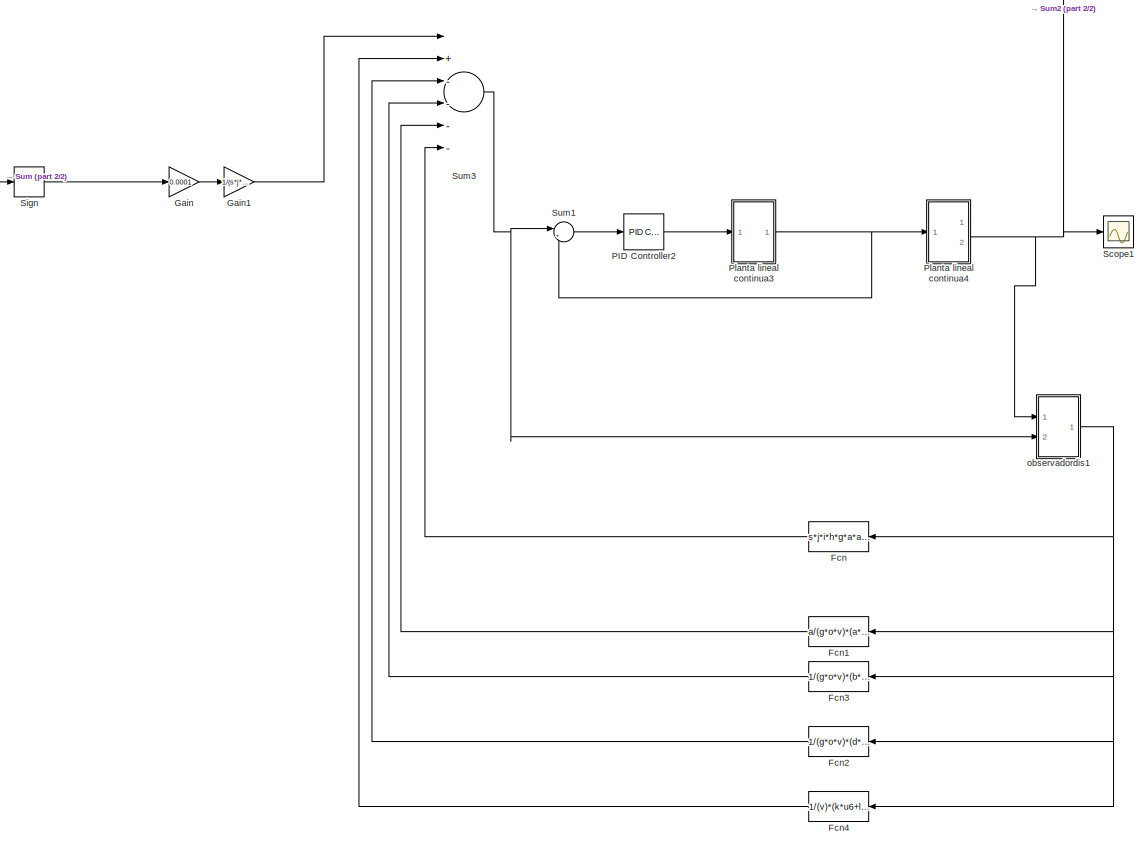
[diagram: root canvas - part 1/2, right side, full height]
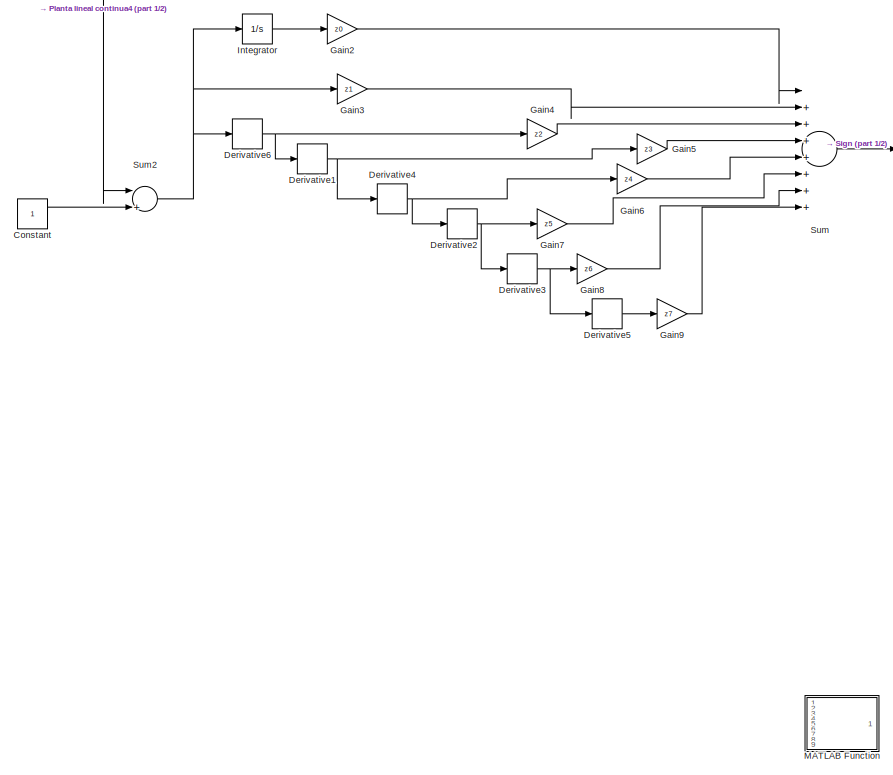
[diagram: root canvas - part 2/2, left side, full height]
MODEL slx_61d25e0f72ef
KIND model
CONFIG AbsTol = auto
CONFIG EnableMultiTasking = off
CONFIG FixedStep = auto
CONFIG MaxStep = auto
CONFIG MinStep = auto
CONFIG RelTol = 1e-3
CONFIG SampleTimeConstraint = Unconstrained
CONFIG Solver = VariableStepAuto
CONFIG SolverName = VariableStepAuto
CONFIG StartTime = 0.0
CONFIG StopTime = 10.0
BLOCK [Constant] Constant
BLOCK [Derivative] Derivative1
BLOCK [Derivative] Derivative2
BLOCK [Derivative] Derivative3
BLOCK [Derivative] Derivative4
BLOCK [Derivative] Derivative5
BLOCK [Derivative] Derivative6
BLOCK [Fcn] Fcn
  Expr = s*j*i*h*g*a*a*(a*u1+b*u2+c*u3+d*u4+e*u5+g*u7)+s*j*i*h*g*a*(b*g*u1+c*h*u2+d*i*u3+e*j*u4+g*o*u6)+s*j*i*h*g*a*(d*h*g*u1+d*h*u2+d*i*u3)+s*j*i*h*g*a*g*o(k*u6+l*u7+m*u8+n*u9)+s*j*i*h*g*a*g*o*v*u
BLOCK [Fcn] Fcn1
  Expr = a/(g*o*v)*(a*u1+b*u2+c*u3+d*u4+e*u5+g*u6)
BLOCK [Fcn] Fcn2
  Expr = 1/(g*o*v)*(d*h*g*u1+c*h*u2+d*i*u3)
BLOCK [Fcn] Fcn3
  Expr = 1/(g*o*v)*(b*g*u1+c*h*u2+d*i*u3+e*j*u4+g*o*u6)
BLOCK [Fcn] Fcn4
  Expr = 1/(v)*(k*u6+l*u7+m*u8+n*u9)
BLOCK [Gain] Gain
  Gain = 0.0001
  OutDataTypeStr = Inherit: Inherit via internal rule
  ParamDataTypeStr = Inherit: Inherit via internal rule
  SaturateOnIntegerOverflow = off
BLOCK [Gain] Gain1
  Gain = 1/(s*j*i*h*g*a*g*o*v)
  OutDataTypeStr = Inherit: Inherit via internal rule
  ParamDataTypeStr = Inherit: Inherit via internal rule
  SaturateOnIntegerOverflow = off
BLOCK [Gain] Gain2
  Gain = z0
  OutDataTypeStr = Inherit: Inherit via internal rule
  ParamDataTypeStr = Inherit: Inherit via internal rule
  SaturateOnIntegerOverflow = off
BLOCK [Gain] Gain3
  Gain = z1
  OutDataTypeStr = Inherit: Inherit via internal rule
  ParamDataTypeStr = Inherit: Inherit via internal rule
  SaturateOnIntegerOverflow = off
BLOCK [Gain] Gain4
  Gain = z2
  OutDataTypeStr = Inherit: Inherit via internal rule
  ParamDataTypeStr = Inherit: Inherit via internal rule
  SaturateOnIntegerOverflow = off
BLOCK [Gain] Gain5
  Gain = z3
  OutDataTypeStr = Inherit: Inherit via internal rule
  ParamDataTypeStr = Inherit: Inherit via internal rule
  SaturateOnIntegerOverflow = off
BLOCK [Gain] Gain6
  Gain = z4
  OutDataTypeStr = Inherit: Inherit via internal rule
  ParamDataTypeStr = Inherit: Inherit via internal rule
  SaturateOnIntegerOverflow = off
BLOCK [Gain] Gain7
  Gain = z5
  OutDataTypeStr = Inherit: Inherit via internal rule
  ParamDataTypeStr = Inherit: Inherit via internal rule
  SaturateOnIntegerOverflow = off
BLOCK [Gain] Gain8
  Gain = z6
  OutDataTypeStr = Inherit: Inherit via internal rule
  ParamDataTypeStr = Inherit: Inherit via internal rule
  SaturateOnIntegerOverflow = off
BLOCK [Gain] Gain9
  Gain = z7
  OutDataTypeStr = Inherit: Inherit via internal rule
  ParamDataTypeStr = Inherit: Inherit via internal rule
  SaturateOnIntegerOverflow = off
BLOCK [Integrator] Integrator
  Ports = [1, 1]
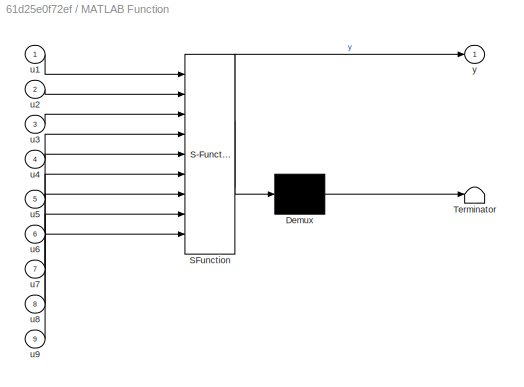
BLOCK [SubSystem] MATLAB Function
  ErrorFcn = Stateflow.Translate.translate
  PermitHierarchicalResolution = ExplicitOnly
  Ports = [9, 1]
  RequestExecContextInheritance = off
  SFBlockType = MATLAB Function
  TreatAsAtomicUnit = on
BLOCK [Demux] MATLAB Function/ Demux 
  Outputs = 1
  Ports = [1, 1]
BLOCK [S-Function] MATLAB Function/ SFunction 
  EnableBusSupport = off
  FunctionName = sf_sfun
  PortCounts = [9 2]
  Ports = [9, 2]
  SFcnIsStateOwnerBlock = off
  SFunctionDeploymentMode = off
  Tag = Stateflow S-Function funcion_1 2
BLOCK [Terminator] MATLAB Function/ Terminator 
BLOCK [Inport] MATLAB Function/u1
  IconDisplay = Port number
BLOCK [Inport] MATLAB Function/u2
  IconDisplay = Port number
  Port = 2
BLOCK [Inport] MATLAB Function/u3
  IconDisplay = Port number
  Port = 3
BLOCK [Inport] MATLAB Function/u4
  IconDisplay = Port number
  Port = 4
BLOCK [Inport] MATLAB Function/u5
  IconDisplay = Port number
  Port = 5
BLOCK [Inport] MATLAB Function/u6
  IconDisplay = Port number
  Port = 6
BLOCK [Inport] MATLAB Function/u7
  IconDisplay = Port number
  Port = 7
BLOCK [Inport] MATLAB Function/u8
  IconDisplay = Port number
  Port = 8
BLOCK [Inport] MATLAB Function/u9
  IconDisplay = Port number
  Port = 9
BLOCK [Outport] MATLAB Function/y
  IconDisplay = Port number
BLOCK [Reference] PID Controller2  REF=simulink/Continuous/PID Controller
  Ports = [1, 1]
  SourceBlock = simulink/Continuous/PID Controller
  SourceProductBaseCode = SL
  SourceProductName = Simulink
  SourceType = PID 1dof
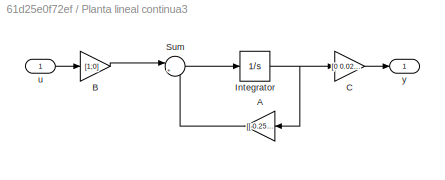
BLOCK [SubSystem] Planta lineal continua3
  Ports = [1, 1]
  RequestExecContextInheritance = off
BLOCK [Gain] Planta lineal continua3/A
  Gain = [[-0.25,-0.025];[1 0]]
  Multiplication = Matrix(K*u) (u vector)
  OutDataTypeStr = Inherit: Inherit via internal rule
  ParamDataTypeStr = Inherit: Inherit via internal rule
  SaturateOnIntegerOverflow = off
BLOCK [Gain] Planta lineal continua3/B
  Gain = [1;0]
  Multiplication = Matrix(K*u) (u vector)
  OutDataTypeStr = Inherit: Inherit via internal rule
  ParamDataTypeStr = Inherit: Inherit via internal rule
  SaturateOnIntegerOverflow = off
BLOCK [Gain] Planta lineal continua3/C
  Gain = [0 0.025]
  Multiplication = Matrix(K*u) (u vector)
  OutDataTypeStr = Inherit: Inherit via internal rule
  ParamDataTypeStr = Inherit: Inherit via internal rule
  SaturateOnIntegerOverflow = off
BLOCK [Integrator] Planta lineal continua3/Integrator
  Ports = [1, 1]
BLOCK [Sum] Planta lineal continua3/Sum
  IconShape = round
  InputSameDT = off
  Inputs = |++
  OutDataTypeStr = Inherit: Inherit via internal rule
  Ports = [2, 1]
  SaturateOnIntegerOverflow = off
BLOCK [Inport] Planta lineal continua3/u
  IconDisplay = Port number
BLOCK [Outport] Planta lineal continua3/y
  IconDisplay = Port number
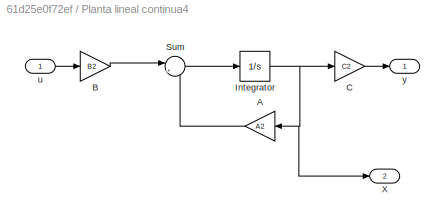
BLOCK [SubSystem] Planta lineal continua4
  Ports = [1, 2]
  RequestExecContextInheritance = off
BLOCK [Gain] Planta lineal continua4/A
  Gain = A2
  Multiplication = Matrix(K*u) (u vector)
  OutDataTypeStr = Inherit: Inherit via internal rule
  ParamDataTypeStr = Inherit: Inherit via internal rule
  SaturateOnIntegerOverflow = off
BLOCK [Gain] Planta lineal continua4/B
  Gain = B2
  Multiplication = Matrix(K*u) (u vector)
  OutDataTypeStr = Inherit: Inherit via internal rule
  ParamDataTypeStr = Inherit: Inherit via internal rule
  SaturateOnIntegerOverflow = off
BLOCK [Gain] Planta lineal continua4/C
  Gain = C2
  Multiplication = Matrix(K*u) (u vector)
  OutDataTypeStr = Inherit: Inherit via internal rule
  ParamDataTypeStr = Inherit: Inherit via internal rule
  SaturateOnIntegerOverflow = off
BLOCK [Integrator] Planta lineal continua4/Integrator
  Ports = [1, 1]
BLOCK [Sum] Planta lineal continua4/Sum
  IconShape = round
  InputSameDT = off
  Inputs = |++
  OutDataTypeStr = Inherit: Inherit via internal rule
  Ports = [2, 1]
  SaturateOnIntegerOverflow = off
BLOCK [Outport] Planta lineal continua4/X
  IconDisplay = Port number
  Port = 2
BLOCK [Inport] Planta lineal continua4/u
  IconDisplay = Port number
BLOCK [Outport] Planta lineal continua4/y
  IconDisplay = Port number
BLOCK [Scope] Scope1
  Floating = off
  NumInputPorts = 1
  Ports = [1]
  ScopeSpecificationString = Simulink.scopes.TimeScopeBlockCfg('CurrentConfiguration', extmgr.ConfigurationSet(extmgr.Configuration('Core','General UI',true),extmgr.Configuration('Core','Source UI',true),extmgr.Configuration('Sources','WiredSimulink',true,'DataLoggingVariableName','ScopeData1'),extmgr.Configuration('Visuals','Time Domain',true,'SerializedDisplays',{struct('MinYLimReal','-0.00016','MaxYLimReal','0.00146','YLab...<+1382ch>
BLOCK [Signum] Sign
  ZeroCross = off
BLOCK [Sum] Sum
  InputSameDT = off
  Inputs = |++++++++
  OutDataTypeStr = Inherit: Inherit via internal rule
  Ports = [8, 1]
  SaturateOnIntegerOverflow = off
BLOCK [Sum] Sum1
  IconShape = round
  InputSameDT = off
  Inputs = |+-
  OutDataTypeStr = Inherit: Inherit via internal rule
  Ports = [2, 1]
  SaturateOnIntegerOverflow = off
BLOCK [Sum] Sum2
  InputSameDT = off
  Inputs = |+-
  OutDataTypeStr = Inherit: Inherit via internal rule
  Ports = [2, 1]
  SaturateOnIntegerOverflow = off
BLOCK [Sum] Sum3
  InputSameDT = off
  Inputs = |+-----
  OutDataTypeStr = Inherit: Inherit via internal rule
  Ports = [6, 1]
  SaturateOnIntegerOverflow = off
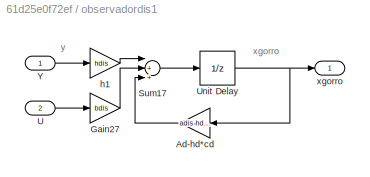
BLOCK [SubSystem] observadordis1
  Ports = [2, 1]
  RequestExecContextInheritance = off
BLOCK [Gain] observadordis1/Ad-hd*cd
  Gain = adis-hdis*cdis
  Multiplication = Matrix(K*u) (u vector)
  OutDataTypeStr = Inherit: Inherit via internal rule
  ParamDataTypeStr = Inherit: Inherit via internal rule
  SampleTime = tm
  SaturateOnIntegerOverflow = off
BLOCK [Gain] observadordis1/Gain27
  Gain = bdis
  Multiplication = Matrix(K*u) (u vector)
  OutDataTypeStr = Inherit: Inherit via internal rule
  ParamDataTypeStr = Inherit: Inherit via internal rule
  SampleTime = tm
  SaturateOnIntegerOverflow = off
BLOCK [Sum] observadordis1/Sum17
  InputSameDT = off
  Inputs = |+++
  OutDataTypeStr = Inherit: Inherit via internal rule
  Ports = [3, 1]
  SaturateOnIntegerOverflow = off
BLOCK [Inport] observadordis1/U
  IconDisplay = Port number
  Port = 2
BLOCK [UnitDelay] observadordis1/Unit Delay
  HasFrameUpgradeWarning = on
  SampleTime = tm
BLOCK [Inport] observadordis1/Y
  IconDisplay = Port number
BLOCK [Gain] observadordis1/h1
  Gain = hdis
  Multiplication = Matrix(K*u) (u vector)
  OutDataTypeStr = Inherit: Inherit via internal rule
  ParamDataTypeStr = Inherit: Inherit via internal rule
  SampleTime = tm
  SaturateOnIntegerOverflow = off
BLOCK [Outport] observadordis1/xgorro
  IconDisplay = Port number
ANNOTATION observadordis1: xgorro
ANNOTATION observadordis1: y
LINE Constant:1 -> Sum2:2
NET Derivative1:1 -> Derivative4:1, Gain5:1
NET Derivative2:1 -> Derivative3:1, Gain7:1
NET Derivative3:1 -> Derivative5:1, Gain8:1
NET Derivative4:1 -> Derivative2:1, Gain6:1
LINE Derivative5:1 -> Gain9:1
NET Derivative6:1 -> Derivative1:1, Gain4:1
LINE Fcn1:1 -> Sum3:5
LINE Fcn2:1 -> Sum3:3
LINE Fcn3:1 -> Sum3:4
LINE Fcn4:1 -> Sum3:2
LINE Fcn:1 -> Sum3:6
LINE Gain1:1 -> Sum3:1
LINE Gain2:1 -> Sum:1
LINE Gain3:1 -> Sum:2
LINE Gain4:1 -> Sum:3
LINE Gain5:1 -> Sum:4
LINE Gain6:1 -> Sum:5
LINE Gain7:1 -> Sum:6
LINE Gain8:1 -> Sum:7
LINE Gain9:1 -> Sum:8
LINE Gain:1 -> Gain1:1
LINE Integrator:1 -> Gain2:1
LINE PID Controller2:1 -> Planta lineal continua3:1
LINE Planta lineal continua3/A:1 -> Planta lineal continua3/Sum:2
LINE Planta lineal continua3/B:1 -> Planta lineal continua3/Sum:1
LINE Planta lineal continua3/C:1 -> Planta lineal continua3/y:1
NET Planta lineal continua3/Integrator:1 -> Planta lineal continua3/A:1, Planta lineal continua3/C:1
LINE Planta lineal continua3/Sum:1 -> Planta lineal continua3/Integrator:1
LINE Planta lineal continua3/u:1 -> Planta lineal continua3/B:1
NET Planta lineal continua3:1 -> Planta lineal continua4:1, Sum1:2
LINE Planta lineal continua4/A:1 -> Planta lineal continua4/Sum:2
LINE Planta lineal continua4/B:1 -> Planta lineal continua4/Sum:1
LINE Planta lineal continua4/C:1 -> Planta lineal continua4/y:1
NET Planta lineal continua4/Integrator:1 -> Planta lineal continua4/A:1, Planta lineal continua4/C:1, Planta lineal continua4/X:1
LINE Planta lineal continua4/Sum:1 -> Planta lineal continua4/Integrator:1
LINE Planta lineal continua4/u:1 -> Planta lineal continua4/B:1
NET Planta lineal continua4:1 -> Scope1:1, Sum2:1, observadordis1:1
LINE Sign:1 -> Gain:1
LINE Sum1:1 -> PID Controller2:1
NET Sum2:1 -> Derivative6:1, Gain3:1, Integrator:1
NET Sum3:1 -> Sum1:1, observadordis1:2
LINE Sum:1 -> Sign:1
LINE observadordis1/Ad-hd*cd:1 -> observadordis1/Sum17:3
LINE observadordis1/Gain27:1 -> observadordis1/Sum17:2
LINE observadordis1/Sum17:1 -> observadordis1/Unit Delay:1
LINE observadordis1/U:1 -> observadordis1/Gain27:1
NET observadordis1/Unit Delay:1 -> observadordis1/Ad-hd*cd:1, observadordis1/xgorro:1
LINE observadordis1/Y:1 -> observadordis1/h1:1
LINE observadordis1/h1:1 -> observadordis1/Sum17:1
NET observadordis1:1 -> Fcn1:1, Fcn2:1, Fcn3:1, Fcn4:1, Fcn:1
note: NET lines group one-source signal fan-out (src -> all destinations, sorted); 1:1 wires keep LINE
CHART MATLAB Function states=1 transitions=1
  STATE_LABEL 'eML_blk_kernel()'
  STATE_LABEL 'SCRIPT:\nfunction y = fcn(u1,u2,u3,u4,u5,u6,u7,u8,u9)\n  a=1.1520e-07\n b=-2.0000e-01\n c=-1.6000e-02  \n d=-6.4000e-04  \n e=-1.2800e-05  \n f=-1.0240e-07 \n g=2.5000e-02\n h=1.0000e+00\n i=1.0000e+00\n j=1.0000e+00\n k=1.0000e+00\n l=-2.5000e-01\n m=-3.3141e+00\n n=-4.3146e+00\n o=1.0000e+00\n p=1.0000e+00\n q=-2.9862e+00\n r=-4.3146e+00\n s=-3.1408e-02\n t=1.3156e+02\n u=1.1945e+02\n v=1.2563e+00\ny = s*j*i*h*g*a*a*(a...<+174ch>'
